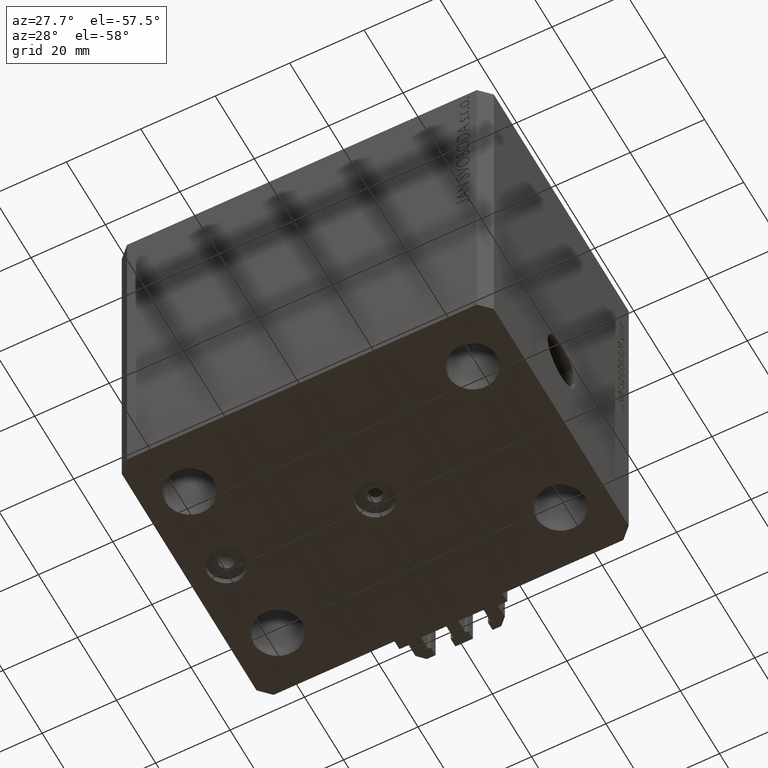
[diagram: clean part render]
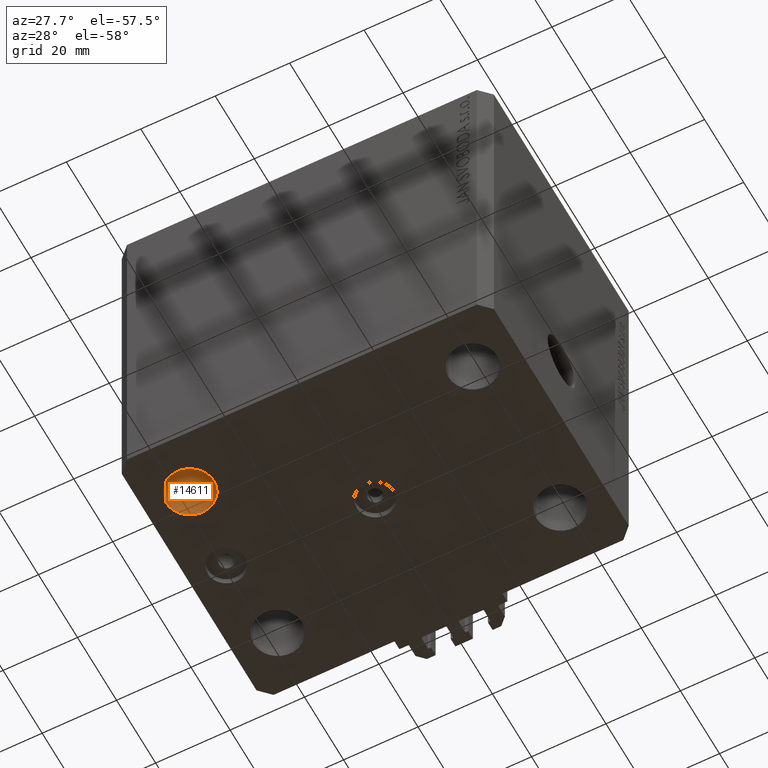
[diagram: same view with one face highlighted and labeled with its STEP entity id]
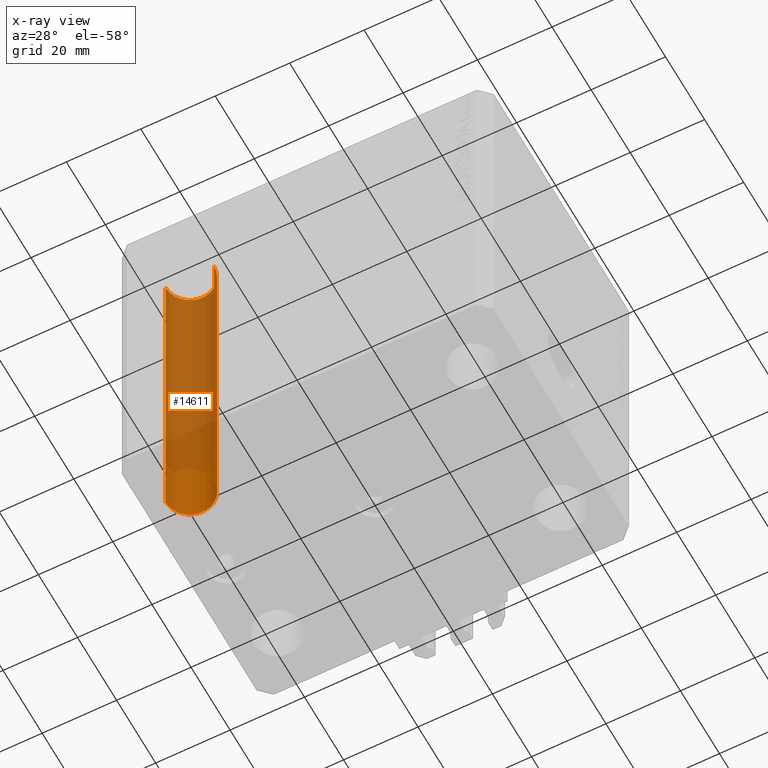
[diagram: x-ray of the same camera — body ghosted, the highlighted face saturated]
A machine part, auxiliary view. The second image highlights one B-rep face of the part: STEP entity #14611.
The next image is the same camera in x-ray: the body ghosted, the highlighted face saturated — about 80% of this face is hidden behind the body in this view.
In plain terms, the highlighted cylindrical surface (edge-blend (fillet) strip) has radius 6.5 mm, axis along (0, 0, 1).
Its self-contained STEP definition (entity closure, byte-faithful):
#415 = EDGE_LOOP ( 'NONE', ( #44721, #33058, #40637, #5815 ) ) ;
#740 = EDGE_CURVE ( 'NONE', #3282, #6148, #11587, .T. ) ;
#1082 = CARTESIAN_POINT ( 'NONE',  ( -44.49999999999999289, -22.50000000000000000, -113.3847763108502278 ) ) ;
#1881 = CARTESIAN_POINT ( 'NONE',  ( -44.49999999999999289, -22.50000000000000000, -95.00000000000000000 ) ) ;
#3282 = VERTEX_POINT ( 'NONE', #46859 ) ;
#4439 = LINE ( 'NONE', #1082, #32199 ) ;
#5815 = ORIENTED_EDGE ( 'NONE', *, *, #31989, .T. ) ;
#6148 = VERTEX_POINT ( 'NONE', #12615 ) ;
#6366 = CARTESIAN_POINT ( 'NONE',  ( -44.49999999999999289, -22.50000000000000000, 0.000000000000000000 ) ) ;
#10283 = DIRECTION ( 'NONE',  ( -0.000000000000000000, -0.000000000000000000, 1.000000000000000000 ) ) ;
#10626 = CIRCLE ( 'NONE', #33633, 6.499999999999999112 ) ;
#11587 = LINE ( 'NONE', #41464, #38110 ) ;
#12359 = CARTESIAN_POINT ( 'NONE',  ( -37.99999999999999289, -22.50000000000000000, -95.00000000000000000 ) ) ;
#12615 = CARTESIAN_POINT ( 'NONE',  ( -31.49999999999999289, -22.50000000000000000, 0.000000000000000000 ) ) ;
#13159 = CYLINDRICAL_SURFACE ( 'NONE', #30283, 6.499999999999999112 ) ;
#14611 = ADVANCED_FACE ( 'NONE', ( #43298 ), #13159, .F. ) ;
#15947 = DIRECTION ( 'NONE',  ( -0.000000000000000000, -0.000000000000000000, -1.000000000000000000 ) ) ;
#16418 = DIRECTION ( 'NONE',  ( 1.000000000000000000, 0.000000000000000000, 0.000000000000000000 ) ) ;
#17146 = VERTEX_POINT ( 'NONE', #6366 ) ;
#17211 = CARTESIAN_POINT ( 'NONE',  ( -37.99999999999999289, -22.50000000000000000, -113.3847763108502278 ) ) ;
#20698 = DIRECTION ( 'NONE',  ( 1.000000000000000000, 0.000000000000000000, 0.000000000000000000 ) ) ;
#21418 = DIRECTION ( 'NONE',  ( 0.000000000000000000, 0.000000000000000000, 1.000000000000000000 ) ) ;
#25731 = DIRECTION ( 'NONE',  ( -0.000000000000000000, -0.000000000000000000, 1.000000000000000000 ) ) ;
#26613 = DIRECTION ( 'NONE',  ( -0.000000000000000000, -0.000000000000000000, 1.000000000000000000 ) ) ;
#29171 = VERTEX_POINT ( 'NONE', #1881 ) ;
#30283 = AXIS2_PLACEMENT_3D ( 'NONE', #17211, #10283, #35398 ) ;
#30410 = EDGE_CURVE ( 'NONE', #29171, #17146, #4439, .T. ) ;
#31989 = EDGE_CURVE ( 'NONE', #6148, #17146, #32236, .T. ) ;
#32199 = VECTOR ( 'NONE', #25731, 1000.000000000000000 ) ;
#32236 = CIRCLE ( 'NONE', #43694, 6.499999999999999112 ) ;
#32418 = CARTESIAN_POINT ( 'NONE',  ( -37.99999999999999289, -22.50000000000000000, 0.000000000000000000 ) ) ;
#33058 = ORIENTED_EDGE ( 'NONE', *, *, #46580, .T. ) ;
#33633 = AXIS2_PLACEMENT_3D ( 'NONE', #12359, #15947, #16418 ) ;
#35398 = DIRECTION ( 'NONE',  ( 1.000000000000000000, 0.000000000000000000, 0.000000000000000000 ) ) ;
#38110 = VECTOR ( 'NONE', #26613, 1000.000000000000000 ) ;
#40637 = ORIENTED_EDGE ( 'NONE', *, *, #740, .T. ) ;
#41464 = CARTESIAN_POINT ( 'NONE',  ( -31.49999999999999289, -22.50000000000000000, -113.3847763108502278 ) ) ;
#43298 = FACE_OUTER_BOUND ( 'NONE', #415, .T. ) ;
#43694 = AXIS2_PLACEMENT_3D ( 'NONE', #32418, #21418, #20698 ) ;
#44721 = ORIENTED_EDGE ( 'NONE', *, *, #30410, .F. ) ;
#46580 = EDGE_CURVE ( 'NONE', #29171, #3282, #10626, .T. ) ;
#46859 = CARTESIAN_POINT ( 'NONE',  ( -31.49999999999999289, -22.50000000000000000, -95.00000000000000000 ) ) ;